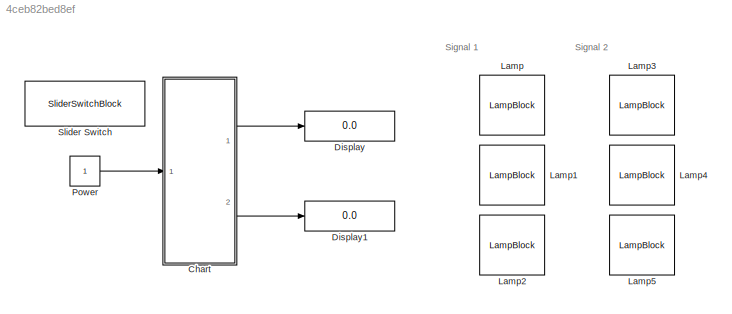
MODEL slx_4ceb82bed8ef
KIND model
CONFIG AbsTol = auto
CONFIG EnableMultiTasking = off
CONFIG FixedStep = auto
CONFIG MaxStep = auto
CONFIG MinStep = auto
CONFIG RelTol = 1e-3
CONFIG SampleTimeConstraint = Unconstrained
CONFIG SolverName = VariableStepAuto
CONFIG StartTime = 0.0
CONFIG StopTime = inf
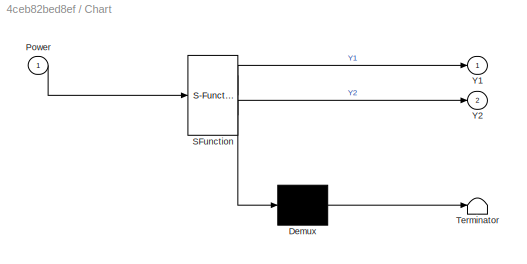
BLOCK [SubSystem] Chart
  ErrorFcn = Stateflow.Translate.translate
  PermitHierarchicalResolution = ExplicitOnly
  Ports = [1, 2]
  RequestExecContextInheritance = off
  SFBlockType = Chart
  TreatAsAtomicUnit = on
BLOCK [Demux] Chart/ Demux 
  Outputs = 1
  Ports = [1, 1]
BLOCK [S-Function] Chart/ SFunction 
  EnableBusSupport = on
  FunctionName = sf_sfun
  PortCounts = [1 3]
  Ports = [1, 3]
  SFcnIsStateOwnerBlock = off
  SFunctionDeploymentMode = off
  Tag = Stateflow S-Function 3
BLOCK [Terminator] Chart/ Terminator 
BLOCK [Inport] Chart/Power
BLOCK [Outport] Chart/Y1
BLOCK [Outport] Chart/Y2
  Port = 2
BLOCK [Display] Display
  Decimation = 1
  Ports = [1]
BLOCK [Display] Display1
  Decimation = 1
  Ports = [1]
BLOCK [LampBlock] Lamp
BLOCK [LampBlock] Lamp1
BLOCK [LampBlock] Lamp2
BLOCK [LampBlock] Lamp3
BLOCK [LampBlock] Lamp4
BLOCK [LampBlock] Lamp5
BLOCK [Constant] Power
BLOCK [SliderSwitchBlock] Slider Switch
ANNOTATION (root): Signal 1
ANNOTATION (root): Signal 2
LINE Chart:1 -> Display:1
LINE Chart:2 -> Display1:1
LINE Power:1 -> Chart:1
CHART Chart states=7 transitions=9
  STATE_LABEL 'Signal_ON'
  STATE_LABEL 'Stop\nen:\nY1=0;\nY2=2;'
  STATE_LABEL 'Ready_to_go1\nen:\nY1=0;\nY2=2;'
  STATE_LABEL 'GO1\nen:\nY1=1;\nY2=0;'
  STATE_LABEL 'Ready_to_go\nen:\nY1=2;\nY2=1;'
  STATE_LABEL 'GO\nen:\nY1=2;\nY2=0;'
  STATE_LABEL '{after(5,sec)}'
  STATE_LABEL '{after(3,sec)}'
  STATE_LABEL '{after(3,sec)}'
  STATE_LABEL '{after(3,sec)}'
  STATE_LABEL '{after(5,sec)}'
  STATE_LABEL 'Stop\nen:\nY1=0;\nY2=2;'
  STATE_LABEL 'Ready_to_go1\nen:\nY1=0;\nY2=2;'
  STATE_LABEL 'GO1\nen:\nY1=1;\nY2=0;'
  STATE_LABEL 'Ready_to_go\nen:\nY1=2;\nY2=1;'
  STATE_LABEL 'GO\nen:\nY1=2;\nY2=0;'
  STATE_LABEL 'Signal_OFF\nen:\nY1=1;\nY2=1;'
CHART  states=0 transitions=0
